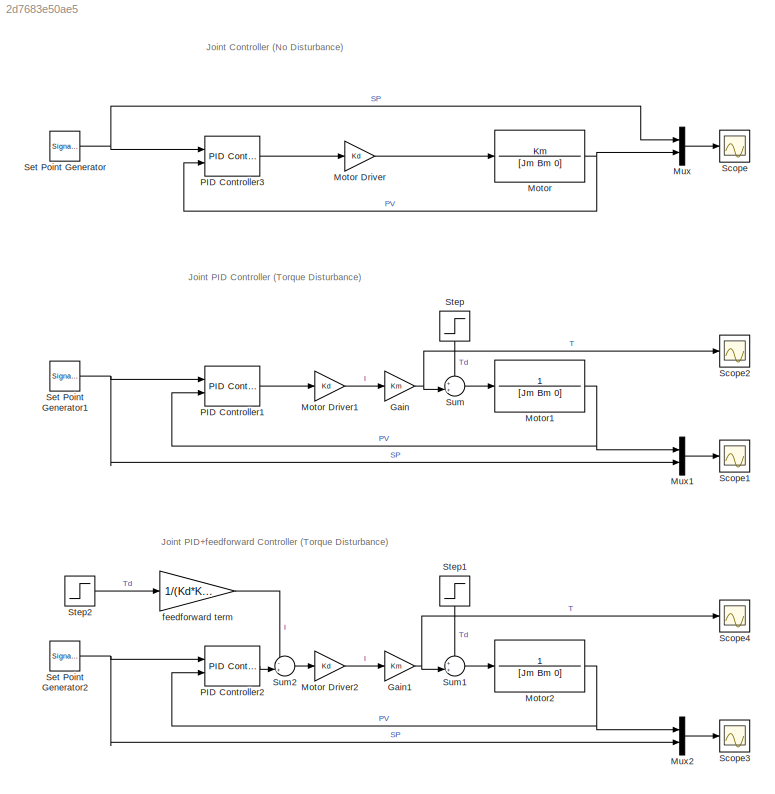
MODEL slx_2d7683e50ae5
KIND model
CONFIG AbsTol = auto
CONFIG EnableMultiTasking = off
CONFIG FixedStep = auto
CONFIG MaxStep = auto
CONFIG MinStep = auto
CONFIG RelTol = 1e-3
CONFIG SampleTimeConstraint = Unconstrained
CONFIG SolverName = VariableStepAuto
CONFIG StartTime = 0.0
CONFIG StopTime = 10.0
BLOCK [TransferFcn]  Motor
  Denominator = [Jm Bm 0]
  Numerator = Km
BLOCK [TransferFcn]  Motor1
  Denominator = [Jm Bm 0]
  Numerator = 1
BLOCK [TransferFcn]  Motor2
  Denominator = [Jm Bm 0]
  Numerator = 1
BLOCK [Gain] Gain
  Gain = Km
BLOCK [Gain] Gain1
  Gain = Km
BLOCK [Gain] Motor Driver
  Gain = Kd
BLOCK [Gain] Motor Driver1
  Gain = Kd
BLOCK [Gain] Motor Driver2
  Gain = Kd
BLOCK [Mux] Mux
  DisplayOption = bar
  Inputs = 2
  Ports = [2, 1]
BLOCK [Mux] Mux1
  DisplayOption = bar
  Inputs = 2
  Ports = [2, 1]
BLOCK [Mux] Mux2
  DisplayOption = bar
  Inputs = 2
  Ports = [2, 1]
BLOCK [Reference] PID Controller1  REF=pid_lib/PID Controller (2DOF)
  Ports = [2, 1]
  SourceBlock = pid_lib/PID Controller (2DOF)
  SourceProductBaseCode = SL
  SourceType = PID 2dof
BLOCK [Reference] PID Controller2  REF=pid_lib/PID Controller (2DOF)
  Ports = [2, 1]
  SourceBlock = pid_lib/PID Controller (2DOF)
  SourceProductBaseCode = SL
  SourceType = PID 2dof
BLOCK [Reference] PID Controller3  REF=pid_lib/PID Controller (2DOF)
  Ports = [2, 1]
  SourceBlock = pid_lib/PID Controller (2DOF)
  SourceProductBaseCode = SL
  SourceType = PID 2dof
BLOCK [Scope] Scope
  Floating = off
  NumInputPorts = 1
  Ports = [1]
  ScopeSpecificationString = Simulink.scopes.TimeScopeBlockCfg('CurrentConfiguration', extmgr.ConfigurationSet(extmgr.Configuration('Core','General UI',true),extmgr.Configuration('Core','Source UI',true),extmgr.Configuration('Sources','WiredSimulink',true),extmgr.Configuration('Visuals','Time Domain',true,'SerializedDisplays',{struct('MinYLimReal','0.43757','MaxYLimReal','1.06394','YLabelReal','','MinYLimMag','0.43757','MaxYL...<+1375ch>
BLOCK [Scope] Scope1
  Floating = off
  NumInputPorts = 1
  Ports = [1]
  ScopeSpecificationString = Simulink.scopes.TimeScopeBlockCfg('CurrentConfiguration', extmgr.ConfigurationSet(extmgr.Configuration('Core','General UI',true),extmgr.Configuration('Core','Source UI',true),extmgr.Configuration('Sources','WiredSimulink',true,'DataLoggingVariableName','ScopeData1'),extmgr.Configuration('Visuals','Time Domain',true,'SerializedDisplays',{struct('MinYLimReal','-1.63307','MaxYLimReal','4.66784','YLab...<+1397ch>
BLOCK [Scope] Scope2
  Floating = off
  NumInputPorts = 1
  Ports = [1]
  ScopeSpecificationString = Simulink.scopes.TimeScopeBlockCfg('CurrentConfiguration', extmgr.ConfigurationSet(extmgr.Configuration('Core','General UI',true),extmgr.Configuration('Core','Source UI',true),extmgr.Configuration('Sources','WiredSimulink',true,'DataLoggingVariableName','ScopeData2'),extmgr.Configuration('Visuals','Time Domain',true,'SerializedDisplays',{struct('MinYLimReal','-10.10775','MaxYLimReal','9.38878','YLa...<+1397ch>
BLOCK [Scope] Scope3
  Floating = off
  NumInputPorts = 1
  Ports = [1]
  ScopeSpecificationString = Simulink.scopes.TimeScopeBlockCfg('CurrentConfiguration', extmgr.ConfigurationSet(extmgr.Configuration('Core','General UI',true),extmgr.Configuration('Core','Source UI',true),extmgr.Configuration('Sources','WiredSimulink',true,'DataLoggingVariableName','ScopeData1'),extmgr.Configuration('Visuals','Time Domain',true,'SerializedDisplays',{struct('MinYLimReal','-1.25368','MaxYLimReal','1.25333','YLab...<+1397ch>
BLOCK [Scope] Scope4
  Floating = off
  NumInputPorts = 1
  Ports = [1]
  ScopeSpecificationString = Simulink.scopes.TimeScopeBlockCfg('CurrentConfiguration', extmgr.ConfigurationSet(extmgr.Configuration('Core','General UI',true),extmgr.Configuration('Core','Source UI',true),extmgr.Configuration('Sources','WiredSimulink',true,'DataLoggingVariableName','ScopeData2'),extmgr.Configuration('Visuals','Time Domain',true,'SerializedDisplays',{struct('MinYLimReal','-9.98553','MaxYLimReal','8.28885','YLab...<+1395ch>
BLOCK [SignalGenerator] Set Point Generator
  Frequency = 0.5
  Ports = [0, 1]
  WaveForm = square
BLOCK [SignalGenerator] Set Point Generator1
  Frequency = 0.5
  Ports = [0, 1]
  WaveForm = square
BLOCK [SignalGenerator] Set Point Generator2
  Frequency = 0.5
  Ports = [0, 1]
  WaveForm = square
BLOCK [Step] Step
  NameLocation = left
  SampleTime = 0
  Time = 5
BLOCK [Step] Step1
  NameLocation = left
  SampleTime = 0
  Time = 5
BLOCK [Step] Step2
  SampleTime = 0
  Time = 5
BLOCK [Sum] Sum
  Inputs = ++|
  Ports = [2, 1]
BLOCK [Sum] Sum1
  Inputs = ++|
  Ports = [2, 1]
BLOCK [Sum] Sum2
  Inputs = -+|
  Ports = [2, 1]
BLOCK [Gain] feedforward term
  Gain = 1/(Kd*Km)
ANNOTATION (root): Joint Controller (No Disturbance)
ANNOTATION (root): Joint PID Controller (Torque Disturbance)
ANNOTATION (root): Joint PID+feedforward Controller (Torque Disturbance)
NET  Motor1:1 -> Mux1:1, PID Controller1:2
NET  Motor2:1 -> Mux2:1, PID Controller2:2
NET  Motor:1 -> Mux:2, PID Controller3:2
NET Gain1:1 -> Scope4:1, Sum1:2
NET Gain:1 -> Scope2:1, Sum:2
LINE Motor Driver1:1 -> Gain:1
LINE Motor Driver2:1 -> Gain1:1
LINE Motor Driver:1 ->  Motor:1
LINE Mux1:1 -> Scope1:1
LINE Mux2:1 -> Scope3:1
LINE Mux:1 -> Scope:1
LINE PID Controller1:1 -> Motor Driver1:1
LINE PID Controller2:1 -> Sum2:2
LINE PID Controller3:1 -> Motor Driver:1
NET Set Point Generator1:1 -> Mux1:2, PID Controller1:1
NET Set Point Generator2:1 -> Mux2:2, PID Controller2:1
NET Set Point Generator:1 -> Mux:1, PID Controller3:1
LINE Step1:1 -> Sum1:1
LINE Step2:1 -> feedforward term:1
LINE Step:1 -> Sum:1
LINE Sum1:1 ->  Motor2:1
LINE Sum2:1 -> Motor Driver2:1
LINE Sum:1 ->  Motor1:1
LINE feedforward term:1 -> Sum2:1
note: NET lines group one-source signal fan-out (src -> all destinations, sorted); 1:1 wires keep LINE
